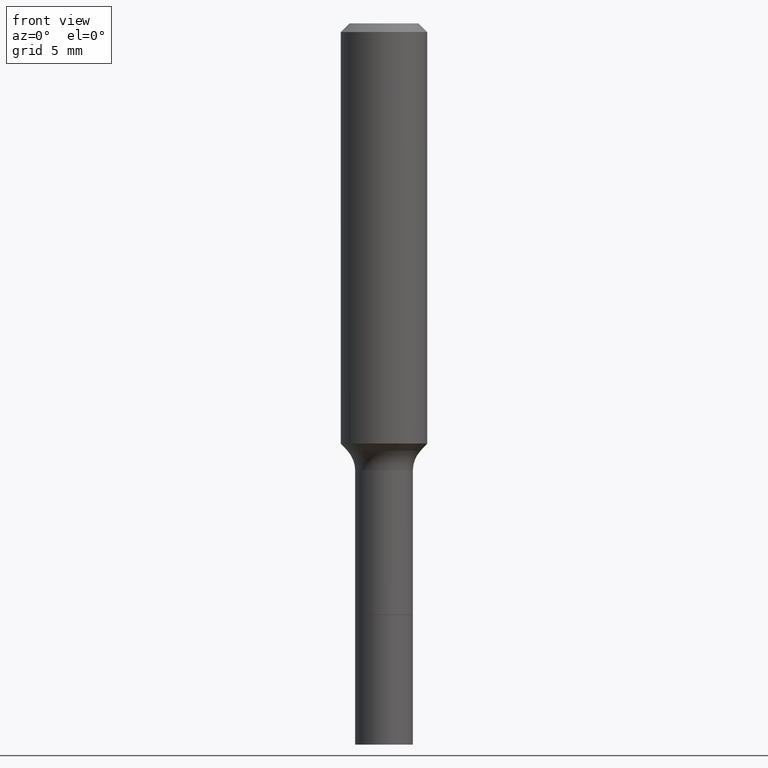
[diagram: clean part render]
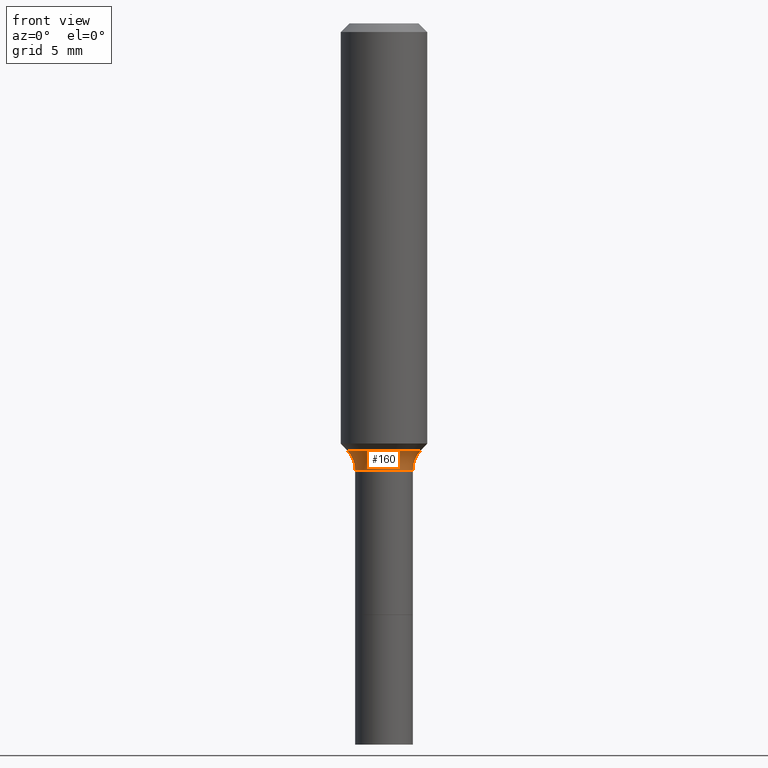
[diagram: same view with one face highlighted and labeled with its STEP entity id]
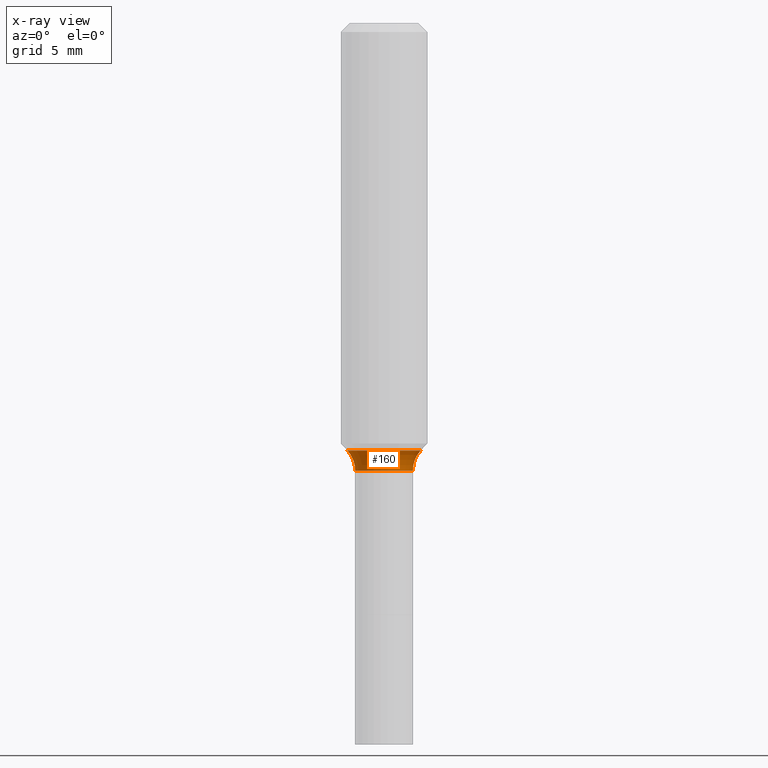
[diagram: x-ray of the same camera — body ghosted, the highlighted face saturated]
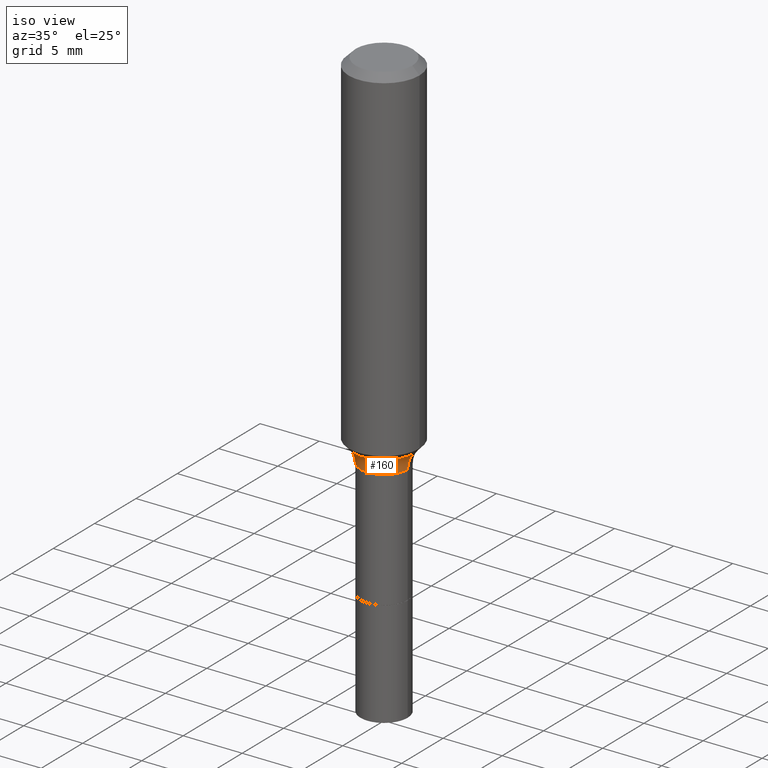
[diagram: same view with one face highlighted and labeled with its STEP entity id]
A machine part, front view. The second image highlights one B-rep face of the part: STEP entity #160.
The next image is the same camera in x-ray: the body ghosted, the highlighted face saturated — about 0% of this face is hidden behind the body in this view.
A second angle (iso view) of the same face is appended — the face is thin or edge-on in the first view.
In plain terms, the highlighted toroidal blend (fillet) surface has major radius 4.0322 mm and minor (blend) radius 2.032 mm.
Its self-contained STEP definition (entity closure, byte-faithful):
#13 = CARTESIAN_POINT ( 'NONE',  ( -0.1002417038704663810, -3.358598065221922092E-15, -1.165940131195000173 ) ) ;
#15 = DIRECTION ( 'NONE',  ( 1.000000000000000000, -6.982962677686266711E-15, 0.000000000000000000 ) ) ;
#37 = VERTEX_POINT ( 'NONE', #99 ) ;
#48 = EDGE_CURVE ( 'NONE', #73, #81, #274, .T. ) ;
#51 = DIRECTION ( 'NONE',  ( -2.445468806185136597E-29, 3.491481338843145583E-15, 1.000000000000000000 ) ) ;
#57 = CIRCLE ( 'NONE', #90, 0.07999999999999996003 ) ;
#58 = EDGE_CURVE ( 'NONE', #73, #37, #284, .T. ) ;
#66 = DIRECTION ( 'NONE',  ( -6.982962677686266711E-15, -1.000000000000000000, 3.491481338843145583E-15 ) ) ;
#73 = VERTEX_POINT ( 'NONE', #13 ) ;
#76 = ORIENTED_EDGE ( 'NONE', *, *, #58, .T. ) ;
#81 = VERTEX_POINT ( 'NONE', #365 ) ;
#90 = AXIS2_PLACEMENT_3D ( 'NONE', #345, #66, #464 ) ;
#94 = DIRECTION ( 'NONE',  ( 1.000000000000000000, -6.982962677686266711E-15, 0.000000000000000000 ) ) ;
#99 = CARTESIAN_POINT ( 'NONE',  ( -0.07874999999999994504, -4.388749523064369885E-15, -1.220499999999999918 ) ) ;
#105 = CIRCLE ( 'NONE', #188, 0.07874999999999994504 ) ;
#116 = ORIENTED_EDGE ( 'NONE', *, *, #136, .T. ) ;
#133 = AXIS2_PLACEMENT_3D ( 'NONE', #176, #256, #413 ) ;
#136 = EDGE_CURVE ( 'NONE', #37, #438, #105, .T. ) ;
#139 = FACE_OUTER_BOUND ( 'NONE', #272, .T. ) ;
#160 = ADVANCED_FACE ( 'NONE', ( #139 ), #486, .F. ) ;
#168 = ORIENTED_EDGE ( 'NONE', *, *, #48, .F. ) ;
#173 = AXIS2_PLACEMENT_3D ( 'NONE', #180, #417, #374 ) ;
#174 = ORIENTED_EDGE ( 'NONE', *, *, #287, .F. ) ;
#176 = CARTESIAN_POINT ( 'NONE',  ( -0.1587499999999999190, -3.133366381038900756E-15, -1.220499999999999918 ) ) ;
#180 = CARTESIAN_POINT ( 'NONE',  ( 2.984694677948959472E-29, -4.261352974058059028E-15, -1.220499999999999918 ) ) ;
#188 = AXIS2_PLACEMENT_3D ( 'NONE', #329, #51, #94 ) ;
#218 = DIRECTION ( 'NONE',  ( -2.445468806185136597E-29, 3.491481338843145583E-15, 1.000000000000000000 ) ) ;
#235 = CARTESIAN_POINT ( 'NONE',  ( 0.07874999999999994504, -4.811261284925852373E-15, -1.220499999999999918 ) ) ;
#256 = DIRECTION ( 'NONE',  ( 7.105427357601001859E-15, 1.000000000000000000, -3.491481338843145583E-15 ) ) ;
#272 = EDGE_LOOP ( 'NONE', ( #168, #76, #116, #174 ) ) ;
#274 = CIRCLE ( 'NONE', #505, 0.1002417038704664781 ) ;
#284 = CIRCLE ( 'NONE', #133, 0.07999999999999996003 ) ;
#287 = EDGE_CURVE ( 'NONE', #81, #438, #57, .T. ) ;
#296 = CARTESIAN_POINT ( 'NONE',  ( 2.851270220716778580E-29, -4.070858210275671756E-15, -1.165940131195000173 ) ) ;
#329 = CARTESIAN_POINT ( 'NONE',  ( 2.984694677948959472E-29, -4.261352974058059028E-15, -1.220499999999999918 ) ) ;
#345 = CARTESIAN_POINT ( 'NONE',  ( 0.1587499999999999190, -5.369898299140753237E-15, -1.220499999999999918 ) ) ;
#365 = CARTESIAN_POINT ( 'NONE',  ( 0.1002417038704663810, -4.770842287150817047E-15, -1.165940131195000173 ) ) ;
#374 = DIRECTION ( 'NONE',  ( 1.000000000000000000, -6.982962677686268288E-15, 4.883557194083113462E-29 ) ) ;
#413 = DIRECTION ( 'NONE',  ( -1.000000000000000000, 7.105427357601001859E-15, 0.000000000000000000 ) ) ;
#417 = DIRECTION ( 'NONE',  ( -2.445468806185136597E-29, 3.491481338843145583E-15, 1.000000000000000000 ) ) ;
#438 = VERTEX_POINT ( 'NONE', #235 ) ;
#464 = DIRECTION ( 'NONE',  ( 1.000000000000000000, -6.982962677686262766E-15, 0.000000000000000000 ) ) ;
#486 = TOROIDAL_SURFACE ( 'NONE', #173, 0.1587499999999999190, 0.07999999999999996003 ) ;
#505 = AXIS2_PLACEMENT_3D ( 'NONE', #296, #218, #15 ) ;